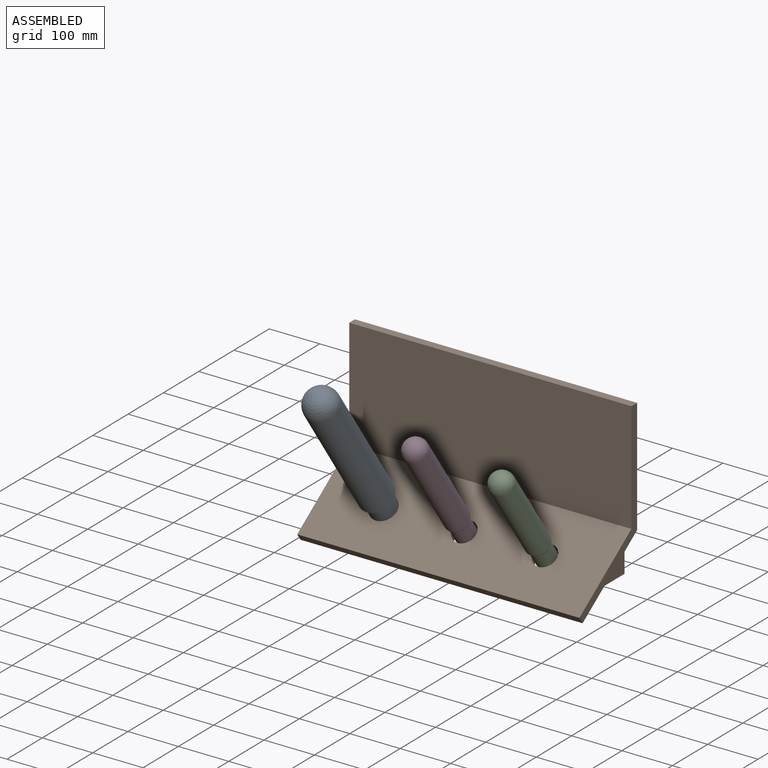
[diagram: assembled view]
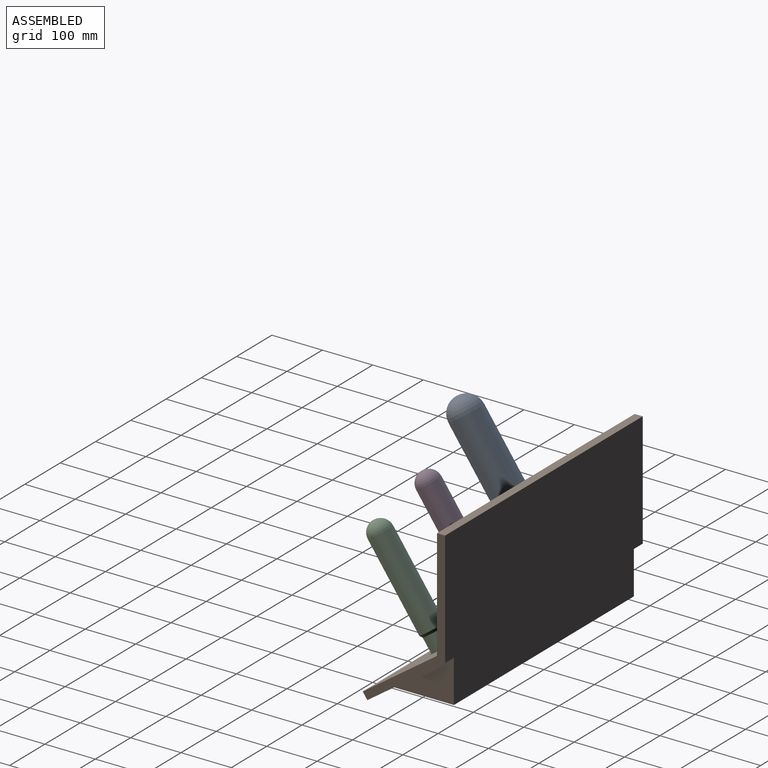
[diagram: assembled view, second angle]
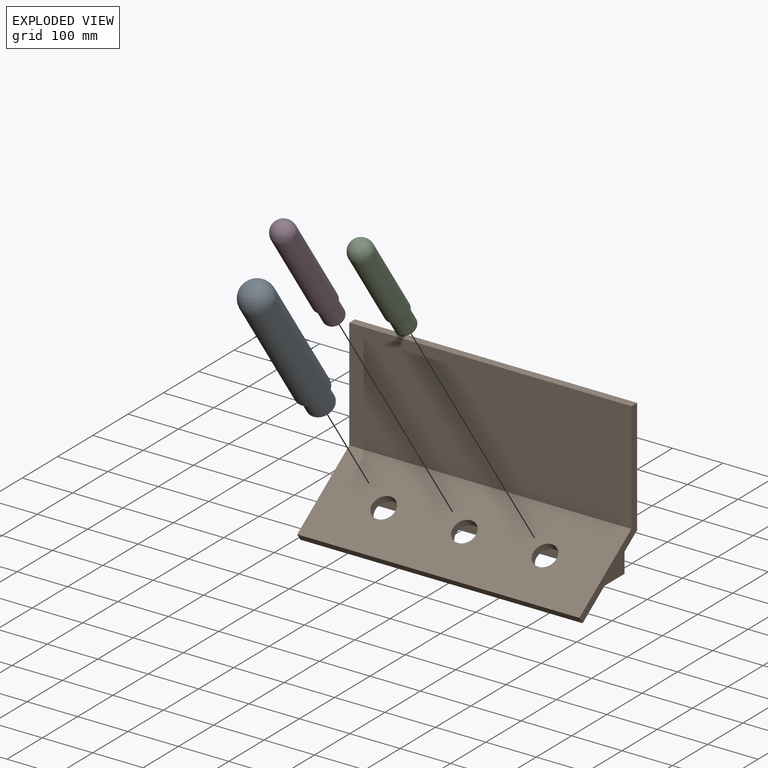
[diagram: exploded view]
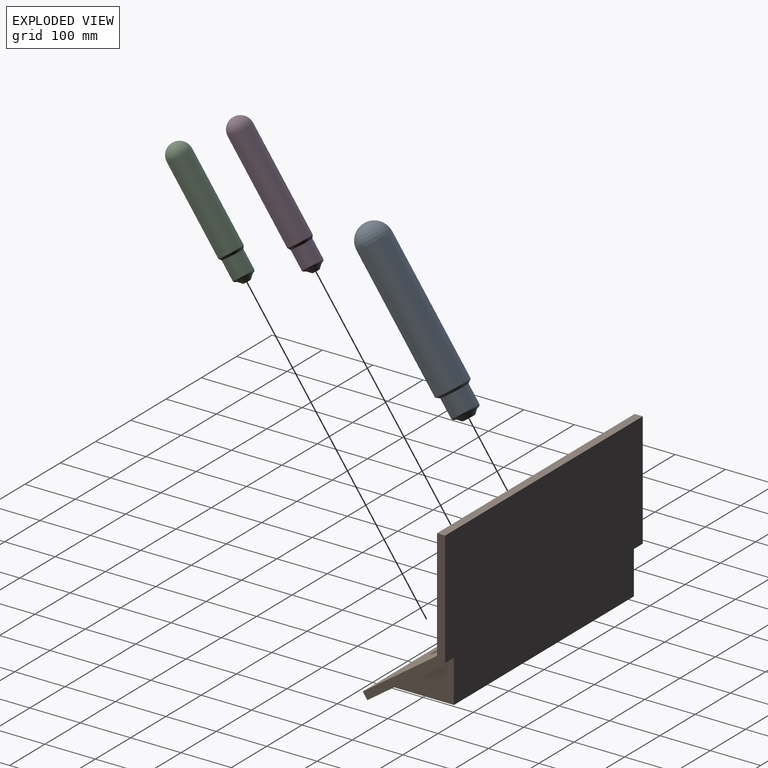
[diagram: exploded view, second angle]
ASSEMBLY  parts=4 mates=3
PART A: 8 faces, bbox 66x66x360 mm
  f0: cylinder r=33mm len=272mm, axis (0,0,1), area 56397.9mm2, adj f1,f6
  f1: cone r=33mm half-angle=54.5deg, axis (0,0,1), area 1594.5mm2, adj f0,f2
  f2: cylinder r=26mm len=52mm, axis (0,0,1), area 6044.4mm2, adj f1,f7
  f3: plane 42x42mm, normal (0,0,-1), area 128.8mm2, adj f4,f7
  f4: cone r=12mm half-angle=45deg, axis (0,0,1), area 1137.4mm2, adj f3,f5
  f5: plane 24x24mm, normal (0,0,-1), area 452.4mm2, adj f4
  f6: sphere r=33mm, area 6842.4mm2, adj f0
  f7: torus R=21mm, axis (0,0,-1), area 1193.4mm2, adj f2,f3
PART B: 17 faces, bbox 560x163.4x336.4 mm
  f0: plane 560x154.27mm, normal (0,0.57,-0.82), area 85885.3mm2, adj f1,f5,f6,f7,f8,f9,f10,f11
  f1: plane 560x313.33mm, normal (0,1,0), area 171214.3mm2, adj f0,f2,f6,f7,f8,f9,f11
  f2: plane 560x16mm, normal (0,0,1), area 8960mm2, adj f1,f3,f6,f7
  f3: plane 560x220mm, normal (0,-1,0), area 123200mm2, adj f2,f4,f6,f7
  f4: plane 560x147.45mm, normal (0,-0.57,0.82), area 95814.3mm2, adj f3,f5,f6,f7,f14,f15,f16
  f5: plane 560x13.11mm, normal (0,-0.82,-0.57), area 8960mm2, adj f0,f4,f6,f7
  f6: plane 336.35x163.45mm, normal (1,0,0), area 6533.3mm2, adj f0,f1,f2,f3,f4,f5
  f7: plane 336.35x163.45mm, normal (-1,0,0), area 6533.3mm2, adj f0,f1,f2,f3,f4,f5
  f8: plane 121.39x85mm, normal (-1,0,0), area 5159.2mm2, adj f0,f1,f11
  f9: plane 121.39x85mm, normal (1,0,0), area 5159.2mm2, adj f0,f1,f11
  f10: plane 474x73.8mm, normal (0,-1,0), area 34979.6mm2, adj f0,f11,f12,f13
  f11: plane 510x121.39mm, normal (0,0,-1), area 11954.1mm2, adj f0,f1,f8,f9,f10,f12,f13
  f12: plane 105.39x73.8mm, normal (1,0,0), area 3888.8mm2, adj f0,f10,f11
  f13: plane 105.39x73.8mm, normal (-1,0,0), area 3888.8mm2, adj f0,f10,f11
  f14: cylinder r=23mm len=46.86mm, axis (0,-0.57,0.82), area 2312.2mm2, adj f0,f4
  f15: cylinder r=23mm len=46.86mm, axis (0,-0.57,0.82), area 2312.2mm2, adj f0,f4
  f16: cylinder r=23mm len=46.86mm, axis (0,-0.57,0.82), area 2312.2mm2, adj f0,f4
PART C: 7 faces, bbox 47x47x257 mm
  f0: cylinder r=23.5mm len=178.5mm, axis (0,0,1), area 26356.4mm2, adj f1,f5
  f1: cone r=23.5mm half-angle=35deg, axis (0,0,1), area 834.1mm2, adj f0,f2
  f2: cylinder r=20mm len=40mm, axis (0,0,1), area 4649.6mm2, adj f1,f6
  f3: cone r=7mm half-angle=45deg, axis (0,0,1), area 781.9mm2, adj f4,f6
  f4: plane 14x14mm, normal (0,0,-1), area 153.9mm2, adj f3
  f5: sphere r=23.5mm, area 3469.9mm2, adj f0
  f6: torus R=15mm, axis (0,0,-1), area 897.3mm2, adj f2,f3
PART D: 7 faces, bbox 47x47x285 mm
  f0: cylinder r=23.5mm len=206.5mm, axis (0,0,1), area 30490.7mm2, adj f1,f5
  f1: cone r=23.5mm half-angle=35deg, axis (0,0,1), area 834.1mm2, adj f0,f2
  f2: cylinder r=20mm len=40mm, axis (0,0,1), area 4649.6mm2, adj f1,f6
  f3: cone r=7mm half-angle=45deg, axis (0,0,1), area 781.9mm2, adj f4,f6
  f4: plane 14x14mm, normal (0,0,-1), area 153.9mm2, adj f3
  f5: sphere r=23.5mm, area 3469.9mm2, adj f0
  f6: torus R=15mm, axis (0,0,-1), area 897.3mm2, adj f2,f3
PLACE A rot(axis=(1,0,0),35deg) t=(-160,-78.25,-288)mm
PLACE B t=(-1600,0,-228.33)mm
PLACE C rot(axis=(1,0,0),35deg) t=(560,-78.25,-288)mm
PLACE D rot(axis=(1,0,0),35deg) t=(200,-78.25,-288)mm
MATE fastened C.f0 <-> B.f14  axis (0,-0.57,0.82) through (160,-106.93,-247.05)mm
MATE fastened A.f0 <-> B.f16  axis (0,-0.57,0.82) through (-160,-106.93,-247.05)mm
MATE fastened D.f0 <-> B.f15  axis (0,-0.57,0.82) through (0,-106.93,-247.05)mm
